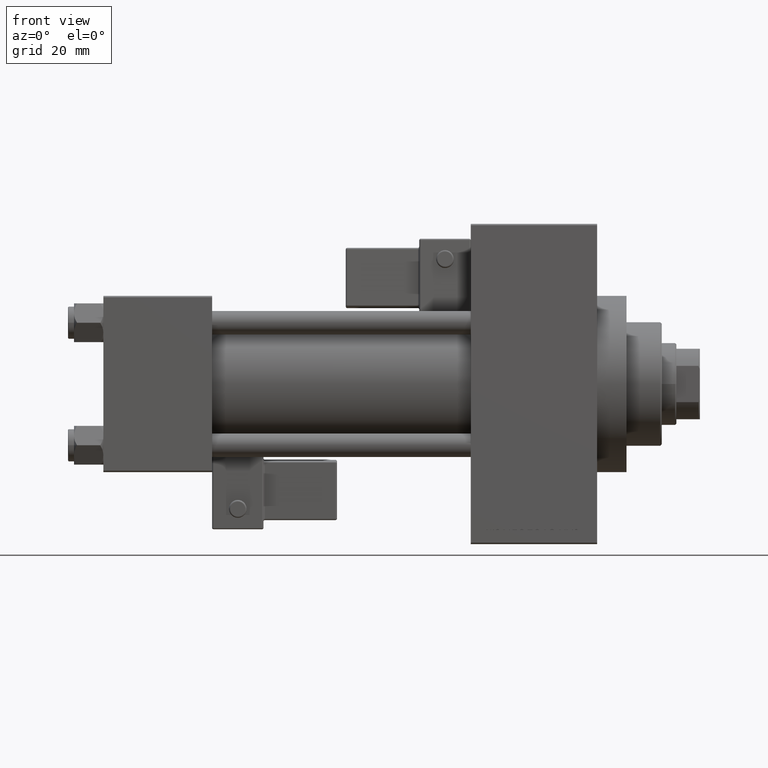
[diagram: clean part render]
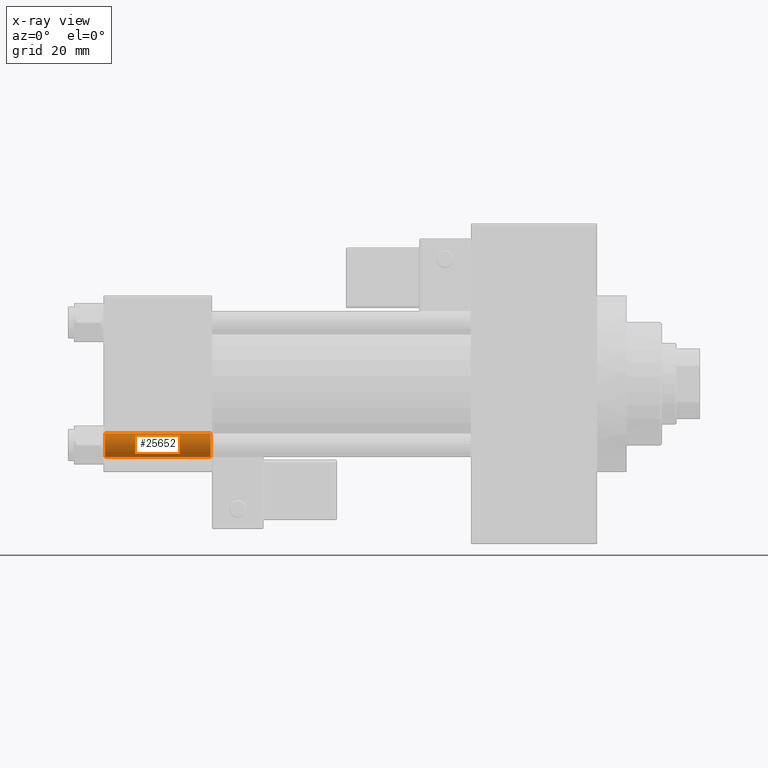
[diagram: x-ray — body ghosted, one internal face saturated and labeled with its STEP entity id]
A machine part, front view, then the same camera in x-ray: the body is ghosted and one INTERNAL B-rep face — a face not visible from any outside direction — is saturated and labeled: STEP entity #25652.
In plain terms, the highlighted cylindrical surface (edge-blend (fillet) strip) has radius 4 mm, axis along (-1, -0, -0).
Its self-contained STEP definition (entity closure, byte-faithful):
#1067 = CARTESIAN_POINT ( 'NONE',  ( 36.49999999999997868, 20.84999999999999787, -20.85000000000000142 ) ) ;
#2494 = CARTESIAN_POINT ( 'NONE',  ( 37.00000000000000711, 20.84999999999999787, -24.85000000000000142 ) ) ;
#5102 = DIRECTION ( 'NONE',  ( 0.000000000000000000, 0.000000000000000000, 1.000000000000000000 ) ) ;
#5795 = CYLINDRICAL_SURFACE ( 'NONE', #16765, 4.000000000000000000 ) ;
#6539 = DIRECTION ( 'NONE',  ( 0.000000000000000000, 0.000000000000000000, 1.000000000000000000 ) ) ;
#7009 = AXIS2_PLACEMENT_3D ( 'NONE', #10009, #18311, #14031 ) ;
#8964 = CIRCLE ( 'NONE', #13777, 4.000000000000000000 ) ;
#9166 = ORIENTED_EDGE ( 'NONE', *, *, #32918, .T. ) ;
#9760 = ORIENTED_EDGE ( 'NONE', *, *, #35128, .F. ) ;
#10009 = CARTESIAN_POINT ( 'NONE',  ( 0.5000000000000213163, 20.84999999999999787, -20.85000000000000142 ) ) ;
#12661 = CARTESIAN_POINT ( 'NONE',  ( 37.00000000000000711, 20.84999999999999787, -16.85000000000000142 ) ) ;
#13777 = AXIS2_PLACEMENT_3D ( 'NONE', #1067, #47574, #5102 ) ;
#14031 = DIRECTION ( 'NONE',  ( 0.000000000000000000, 0.000000000000000000, 1.000000000000000000 ) ) ;
#15492 = EDGE_CURVE ( 'NONE', #16947, #20205, #40710, .T. ) ;
#16765 = AXIS2_PLACEMENT_3D ( 'NONE', #21133, #36460, #6539 ) ;
#16947 = VERTEX_POINT ( 'NONE', #22458 ) ;
#17843 = DIRECTION ( 'NONE',  ( -1.000000000000000000, -0.000000000000000000, -0.000000000000000000 ) ) ;
#18311 = DIRECTION ( 'NONE',  ( -1.000000000000000000, 0.000000000000000000, 0.000000000000000000 ) ) ;
#20180 = EDGE_CURVE ( 'NONE', #20205, #23711, #28681, .T. ) ;
#20205 = VERTEX_POINT ( 'NONE', #29111 ) ;
#20876 = CARTESIAN_POINT ( 'NONE',  ( 0.5000000000000213163, 20.84999999999999787, -16.85000000000000142 ) ) ;
#21133 = CARTESIAN_POINT ( 'NONE',  ( 37.00000000000000711, 20.84999999999999787, -20.85000000000000142 ) ) ;
#22458 = CARTESIAN_POINT ( 'NONE',  ( 36.49999999999997868, 20.84999999999999787, -24.85000000000000142 ) ) ;
#23711 = VERTEX_POINT ( 'NONE', #20876 ) ;
#25652 = ADVANCED_FACE ( 'NONE', ( #47049 ), #5795, .F. ) ;
#26134 = VECTOR ( 'NONE', #17843, 1000.000000000000000 ) ;
#28681 = CIRCLE ( 'NONE', #7009, 4.000000000000000000 ) ;
#29111 = CARTESIAN_POINT ( 'NONE',  ( 0.5000000000000213163, 20.84999999999999787, -24.85000000000000142 ) ) ;
#32918 = EDGE_CURVE ( 'NONE', #46102, #16947, #8964, .T. ) ;
#35128 = EDGE_CURVE ( 'NONE', #46102, #23711, #43328, .T. ) ;
#36036 = CARTESIAN_POINT ( 'NONE',  ( 36.49999999999997868, 20.84999999999999787, -16.85000000000000142 ) ) ;
#36460 = DIRECTION ( 'NONE',  ( -1.000000000000000000, -0.000000000000000000, -0.000000000000000000 ) ) ;
#36547 = ORIENTED_EDGE ( 'NONE', *, *, #20180, .T. ) ;
#36959 = DIRECTION ( 'NONE',  ( -1.000000000000000000, -0.000000000000000000, -0.000000000000000000 ) ) ;
#40710 = LINE ( 'NONE', #2494, #26134 ) ;
#41812 = ORIENTED_EDGE ( 'NONE', *, *, #15492, .T. ) ;
#43328 = LINE ( 'NONE', #12661, #46808 ) ;
#44547 = EDGE_LOOP ( 'NONE', ( #9166, #41812, #36547, #9760 ) ) ;
#46102 = VERTEX_POINT ( 'NONE', #36036 ) ;
#46808 = VECTOR ( 'NONE', #36959, 1000.000000000000000 ) ;
#47049 = FACE_OUTER_BOUND ( 'NONE', #44547, .T. ) ;
#47574 = DIRECTION ( 'NONE',  ( 1.000000000000000000, -0.000000000000000000, -0.000000000000000000 ) ) ;